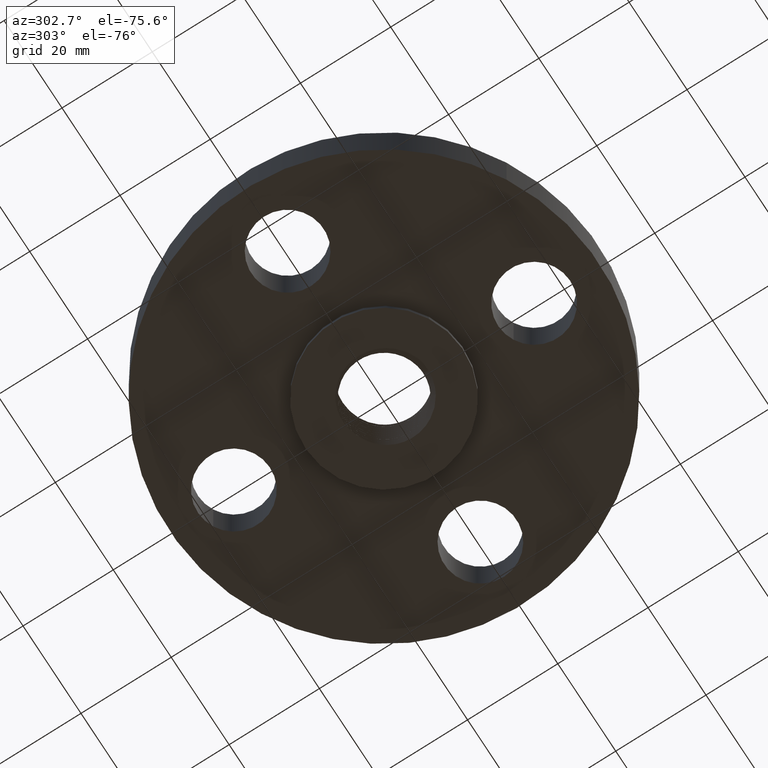
[diagram: clean part render]
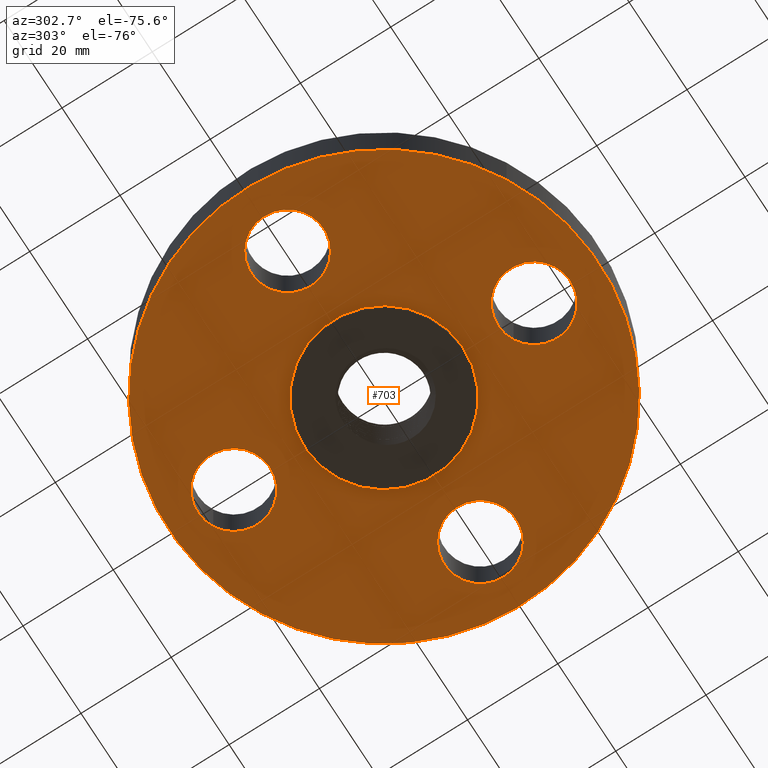
[diagram: same view with one face highlighted and labeled with its STEP entity id]
A machine part, auxiliary view. The second image highlights one B-rep face of the part: STEP entity #703.
In plain terms, the highlighted planar face has unit normal (0, 0, -1).
Its self-contained STEP definition (entity closure, byte-faithful):
#348=AXIS2_PLACEMENT_3D('Circle Axis2P3D',#346,#347,$) ;
#374=AXIS2_PLACEMENT_3D('Circle Axis2P3D',#372,#373,$) ;
#396=AXIS2_PLACEMENT_3D('Circle Axis2P3D',#394,#395,$) ;
#431=AXIS2_PLACEMENT_3D('Circle Axis2P3D',#429,#430,$) ;
#603=AXIS2_PLACEMENT_3D('Circle Axis2P3D',#601,#602,$) ;
#622=AXIS2_PLACEMENT_3D('Circle Axis2P3D',#620,#621,$) ;
#635=AXIS2_PLACEMENT_3D('Plane Axis2P3D',#632,#633,#634) ;
#651=AXIS2_PLACEMENT_3D('Circle Axis2P3D',#649,#650,$) ;
#660=AXIS2_PLACEMENT_3D('Circle Axis2P3D',#658,#659,$) ;
#669=AXIS2_PLACEMENT_3D('Circle Axis2P3D',#667,#668,$) ;
#678=AXIS2_PLACEMENT_3D('Circle Axis2P3D',#676,#677,$) ;
#687=AXIS2_PLACEMENT_3D('Circle Axis2P3D',#685,#686,$) ;
#696=AXIS2_PLACEMENT_3D('Circle Axis2P3D',#694,#695,$) ;
#341=CARTESIAN_POINT('Vertex',(1.03356149301,0.151019044661,0.)) ;
#346=CARTESIAN_POINT('Axis2P3D Location',(1.31000000001,0.,0.)) ;
#350=CARTESIAN_POINT('Vertex',(1.586438507,-0.151019044661,0.)) ;
#372=CARTESIAN_POINT('Axis2P3D Location',(1.31000000001,0.,0.)) ;
#394=CARTESIAN_POINT('Axis2P3D Location',(0.,0.,6.99353086378E-017)) ;
#398=CARTESIAN_POINT('Vertex',(-0.898922884886,-1.64546730355,6.99353086378E-017)) ;
#400=CARTESIAN_POINT('Vertex',(0.898922884886,1.64546730355,6.99353086378E-017)) ;
#429=CARTESIAN_POINT('Axis2P3D Location',(0.,0.,6.99353086378E-017)) ;
#598=CARTESIAN_POINT('Vertex',(-0.330803621638,-0.605531967707,1.39870617276E-016)) ;
#601=CARTESIAN_POINT('Axis2P3D Location',(0.,0.,1.39870617276E-016)) ;
#605=CARTESIAN_POINT('Vertex',(0.330803621638,0.605531967707,1.39870617276E-016)) ;
#620=CARTESIAN_POINT('Axis2P3D Location',(0.,0.,1.39870617276E-016)) ;
#632=CARTESIAN_POINT('Axis2P3D Location',(0.,0.690000000003,0.)) ;
#649=CARTESIAN_POINT('Axis2P3D Location',(-3.49676543189E-017,-1.31000000001,0.)) ;
#653=CARTESIAN_POINT('Vertex',(0.151019044661,-1.03356149301,0.)) ;
#655=CARTESIAN_POINT('Vertex',(-0.151019044661,-1.586438507,0.)) ;
#658=CARTESIAN_POINT('Axis2P3D Location',(-1.39870617276E-016,-1.31000000001,0.)) ;
#667=CARTESIAN_POINT('Axis2P3D Location',(-1.31000000001,-1.39870617276E-016,0.)) ;
#671=CARTESIAN_POINT('Vertex',(-1.03356149301,-0.151019044661,0.)) ;
#673=CARTESIAN_POINT('Vertex',(-1.586438507,0.151019044661,0.)) ;
#676=CARTESIAN_POINT('Axis2P3D Location',(-1.31000000001,0.,0.)) ;
#685=CARTESIAN_POINT('Axis2P3D Location',(-3.1470888887E-016,1.31000000001,0.)) ;
#689=CARTESIAN_POINT('Vertex',(-0.151019044661,1.03356149301,0.)) ;
#691=CARTESIAN_POINT('Vertex',(0.151019044661,1.586438507,0.)) ;
#694=CARTESIAN_POINT('Axis2P3D Location',(-2.79741234551E-016,1.31000000001,0.)) ;
#347=DIRECTION('Axis2P3D Direction',(0.,-0.,-0.0393700787402)) ;
#373=DIRECTION('Axis2P3D Direction',(0.,-0.,-0.0393700787402)) ;
#395=DIRECTION('Axis2P3D Direction',(0.,0.,-0.0393700787402)) ;
#430=DIRECTION('Axis2P3D Direction',(0.,0.,-0.0393700787402)) ;
#602=DIRECTION('Axis2P3D Direction',(0.,0.,-0.0393700787402)) ;
#621=DIRECTION('Axis2P3D Direction',(0.,0.,-0.0393700787402)) ;
#633=DIRECTION('Axis2P3D Direction',(0.,0.,-0.0393700787402)) ;
#634=DIRECTION('Axis2P3D XDirection',(0.0393700787402,0.,0.)) ;
#650=DIRECTION('Axis2P3D Direction',(0.,0.,-0.0393700787402)) ;
#659=DIRECTION('Axis2P3D Direction',(0.,0.,-0.0393700787402)) ;
#668=DIRECTION('Axis2P3D Direction',(0.,0.,-0.0393700787402)) ;
#677=DIRECTION('Axis2P3D Direction',(0.,0.,-0.0393700787402)) ;
#686=DIRECTION('Axis2P3D Direction',(0.,0.,-0.0393700787402)) ;
#695=DIRECTION('Axis2P3D Direction',(0.,0.,-0.0393700787402)) ;
#638=ORIENTED_EDGE('',*,*,#402,.T.) ;
#639=ORIENTED_EDGE('',*,*,#433,.T.) ;
#642=ORIENTED_EDGE('',*,*,#376,.F.) ;
#643=ORIENTED_EDGE('',*,*,#352,.F.) ;
#646=ORIENTED_EDGE('',*,*,#624,.F.) ;
#647=ORIENTED_EDGE('',*,*,#607,.F.) ;
#664=ORIENTED_EDGE('',*,*,#657,.F.) ;
#665=ORIENTED_EDGE('',*,*,#662,.F.) ;
#682=ORIENTED_EDGE('',*,*,#675,.F.) ;
#683=ORIENTED_EDGE('',*,*,#680,.F.) ;
#700=ORIENTED_EDGE('',*,*,#693,.F.) ;
#701=ORIENTED_EDGE('',*,*,#698,.F.) ;
#644=FACE_BOUND('',#641,.T.) ;
#648=FACE_BOUND('',#645,.T.) ;
#666=FACE_BOUND('',#663,.T.) ;
#684=FACE_BOUND('',#681,.T.) ;
#702=FACE_BOUND('',#699,.T.) ;
#703=ADVANCED_FACE('PartBody',(#640,#644,#648,#666,#684,#702),#636,.T.) ;
#349=CIRCLE('generated circle',#348,0.315000000001) ;
#375=CIRCLE('generated circle',#374,0.315000000001) ;
#397=CIRCLE('generated circle',#396,1.87500000001) ;
#432=CIRCLE('generated circle',#431,1.87500000001) ;
#604=CIRCLE('generated circle',#603,0.690000000003) ;
#623=CIRCLE('generated circle',#622,0.690000000003) ;
#652=CIRCLE('generated circle',#651,0.315000000001) ;
#661=CIRCLE('generated circle',#660,0.315000000001) ;
#670=CIRCLE('generated circle',#669,0.315000000001) ;
#679=CIRCLE('generated circle',#678,0.315000000001) ;
#688=CIRCLE('generated circle',#687,0.315000000001) ;
#697=CIRCLE('generated circle',#696,0.315000000001) ;
#352=EDGE_CURVE('',#342,#351,#349,.T.) ;
#376=EDGE_CURVE('',#351,#342,#375,.T.) ;
#402=EDGE_CURVE('',#399,#401,#397,.T.) ;
#433=EDGE_CURVE('',#401,#399,#432,.T.) ;
#607=EDGE_CURVE('',#599,#606,#604,.T.) ;
#624=EDGE_CURVE('',#606,#599,#623,.T.) ;
#657=EDGE_CURVE('',#654,#656,#652,.T.) ;
#662=EDGE_CURVE('',#656,#654,#661,.T.) ;
#675=EDGE_CURVE('',#672,#674,#670,.T.) ;
#680=EDGE_CURVE('',#674,#672,#679,.T.) ;
#693=EDGE_CURVE('',#690,#692,#688,.T.) ;
#698=EDGE_CURVE('',#692,#690,#697,.T.) ;
#637=EDGE_LOOP('',(#638,#639)) ;
#641=EDGE_LOOP('',(#642,#643)) ;
#645=EDGE_LOOP('',(#646,#647)) ;
#663=EDGE_LOOP('',(#664,#665)) ;
#681=EDGE_LOOP('',(#682,#683)) ;
#699=EDGE_LOOP('',(#700,#701)) ;
#640=FACE_OUTER_BOUND('',#637,.T.) ;
#636=PLANE('',#635) ;
#342=VERTEX_POINT('',#341) ;
#351=VERTEX_POINT('',#350) ;
#399=VERTEX_POINT('',#398) ;
#401=VERTEX_POINT('',#400) ;
#599=VERTEX_POINT('',#598) ;
#606=VERTEX_POINT('',#605) ;
#654=VERTEX_POINT('',#653) ;
#656=VERTEX_POINT('',#655) ;
#672=VERTEX_POINT('',#671) ;
#674=VERTEX_POINT('',#673) ;
#690=VERTEX_POINT('',#689) ;
#692=VERTEX_POINT('',#691) ;